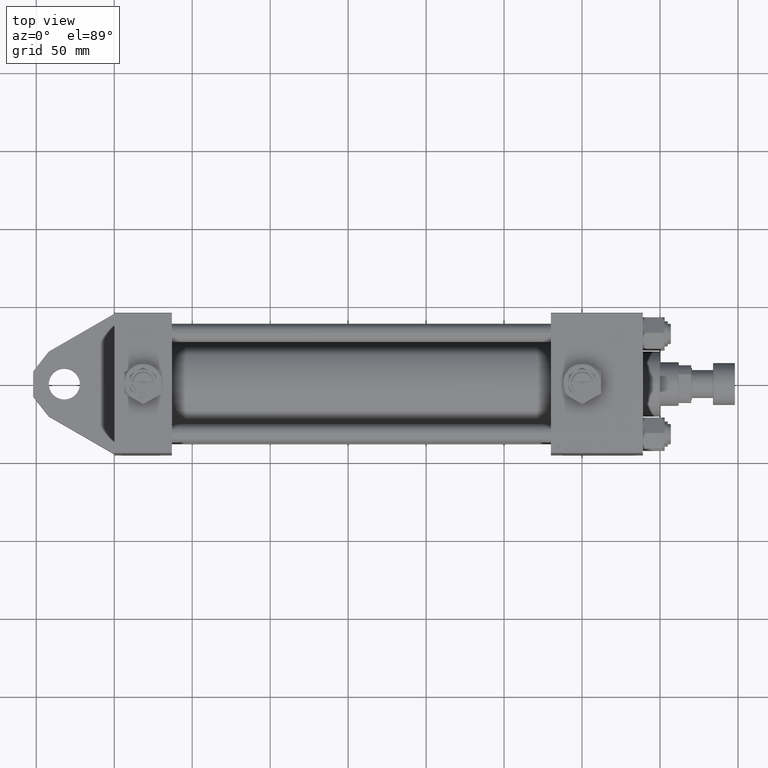
[diagram: clean part render]
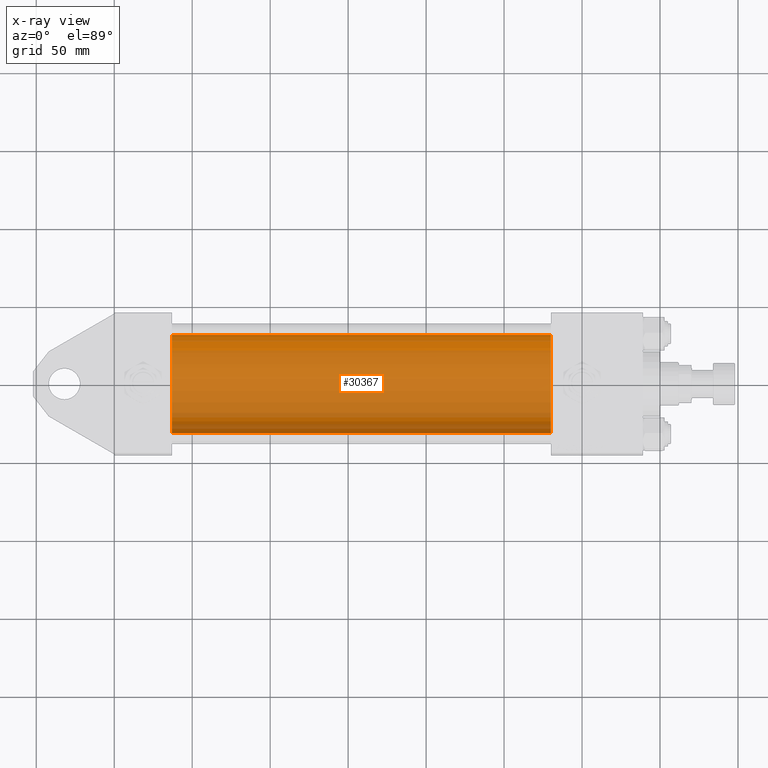
[diagram: x-ray — body ghosted, one internal face saturated and labeled with its STEP entity id]
A machine part, top view, then the same camera in x-ray: the body is ghosted and one INTERNAL B-rep face — a face not visible from any outside direction — is saturated and labeled: STEP entity #30367.
In plain terms, the highlighted cylindrical surface (partial cylindrical patch) has radius 31.5 mm, axis along (-1, -0, 0).
Its self-contained STEP definition (entity closure, byte-faithful):
#52 = EDGE_CURVE ( 'NONE', #43904, #2422, #38868, .T. ) ;
#673 = CARTESIAN_POINT ( 'NONE',  ( 279.9999999999999432, 1.255552203348951850E-15, -31.50000000000000000 ) ) ;
#2422 = VERTEX_POINT ( 'NONE', #29560 ) ;
#2747 = CARTESIAN_POINT ( 'NONE',  ( 279.9999999999999432, -2.602085213965210642E-15, 0.000000000000000000 ) ) ;
#5643 = DIRECTION ( 'NONE',  ( -1.000000000000000000, -0.000000000000000000, -0.000000000000000000 ) ) ;
#6430 = FACE_OUTER_BOUND ( 'NONE', #39108, .T. ) ;
#9134 = CIRCLE ( 'NONE', #11452, 31.50000000000000000 ) ;
#9564 = CARTESIAN_POINT ( 'NONE',  ( 279.9999999999999432, -2.602085213965210642E-15, 0.000000000000000000 ) ) ;
#11452 = AXIS2_PLACEMENT_3D ( 'NONE', #9564, #21603, #13975 ) ;
#12555 = DIRECTION ( 'NONE',  ( -1.000000000000000000, -0.000000000000000000, -0.000000000000000000 ) ) ;
#13975 = DIRECTION ( 'NONE',  ( 0.000000000000000000, 0.000000000000000000, -1.000000000000000000 ) ) ;
#14216 = ORIENTED_EDGE ( 'NONE', *, *, #41849, .T. ) ;
#14978 = EDGE_CURVE ( 'NONE', #43904, #15826, #9134, .T. ) ;
#15826 = VERTEX_POINT ( 'NONE', #673 ) ;
#16246 = CARTESIAN_POINT ( 'NONE',  ( 279.9999999999999432, -2.602085213965210642E-15, 31.50000000000000000 ) ) ;
#16428 = VECTOR ( 'NONE', #5643, 1000.000000000000000 ) ;
#17734 = AXIS2_PLACEMENT_3D ( 'NONE', #2747, #32728, #47709 ) ;
#21603 = DIRECTION ( 'NONE',  ( 1.000000000000000000, 0.000000000000000000, 0.000000000000000000 ) ) ;
#23998 = VERTEX_POINT ( 'NONE', #38709 ) ;
#24647 = DIRECTION ( 'NONE',  ( 0.000000000000000000, 0.000000000000000000, -1.000000000000000000 ) ) ;
#25068 = ORIENTED_EDGE ( 'NONE', *, *, #14978, .T. ) ;
#27417 = CIRCLE ( 'NONE', #36052, 31.50000000000000000 ) ;
#28381 = VECTOR ( 'NONE', #12555, 1000.000000000000000 ) ;
#28653 = CARTESIAN_POINT ( 'NONE',  ( 279.9999999999999432, -2.602085213965210642E-15, 31.50000000000000000 ) ) ;
#28759 = LINE ( 'NONE', #36600, #16428 ) ;
#29560 = CARTESIAN_POINT ( 'NONE',  ( 37.00000000000000000, -2.602085213965210642E-15, 31.50000000000000000 ) ) ;
#30367 = ADVANCED_FACE ( 'NONE', ( #6430 ), #36419, .F. ) ;
#32728 = DIRECTION ( 'NONE',  ( -1.000000000000000000, -0.000000000000000000, -0.000000000000000000 ) ) ;
#36052 = AXIS2_PLACEMENT_3D ( 'NONE', #38905, #46512, #24647 ) ;
#36419 = CYLINDRICAL_SURFACE ( 'NONE', #17734, 31.50000000000000000 ) ;
#36600 = CARTESIAN_POINT ( 'NONE',  ( 279.9999999999999432, 1.255552203348951850E-15, -31.50000000000000000 ) ) ;
#38709 = CARTESIAN_POINT ( 'NONE',  ( 37.00000000000000000, 1.255552203348951850E-15, -31.50000000000000000 ) ) ;
#38868 = LINE ( 'NONE', #16246, #28381 ) ;
#38905 = CARTESIAN_POINT ( 'NONE',  ( 37.00000000000000000, -2.602085213965210642E-15, 0.000000000000000000 ) ) ;
#39108 = EDGE_LOOP ( 'NONE', ( #25068, #14216, #45323, #47638 ) ) ;
#41849 = EDGE_CURVE ( 'NONE', #15826, #23998, #28759, .T. ) ;
#42291 = EDGE_CURVE ( 'NONE', #2422, #23998, #27417, .T. ) ;
#43904 = VERTEX_POINT ( 'NONE', #28653 ) ;
#45323 = ORIENTED_EDGE ( 'NONE', *, *, #42291, .F. ) ;
#46512 = DIRECTION ( 'NONE',  ( 1.000000000000000000, 0.000000000000000000, 0.000000000000000000 ) ) ;
#47638 = ORIENTED_EDGE ( 'NONE', *, *, #52, .F. ) ;
#47709 = DIRECTION ( 'NONE',  ( 0.000000000000000000, 0.000000000000000000, 1.000000000000000000 ) ) ;